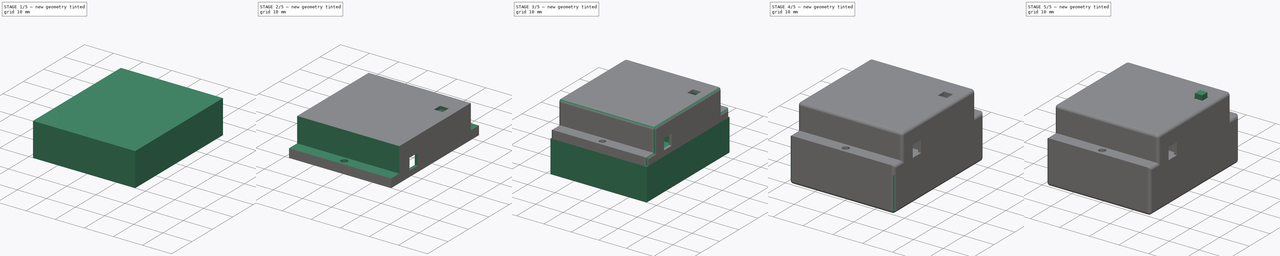
[diagram: build sequence overview — one tinted view per stage of 5, left to right]
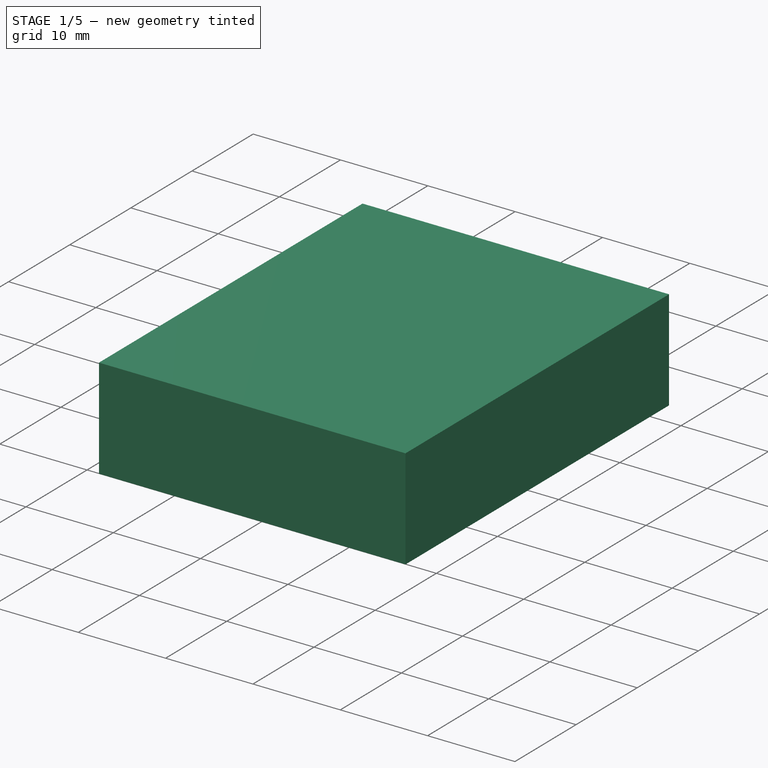
[diagram: stage 1 of 5 — iso view after this stage's code; geometry added in this stage tinted green]
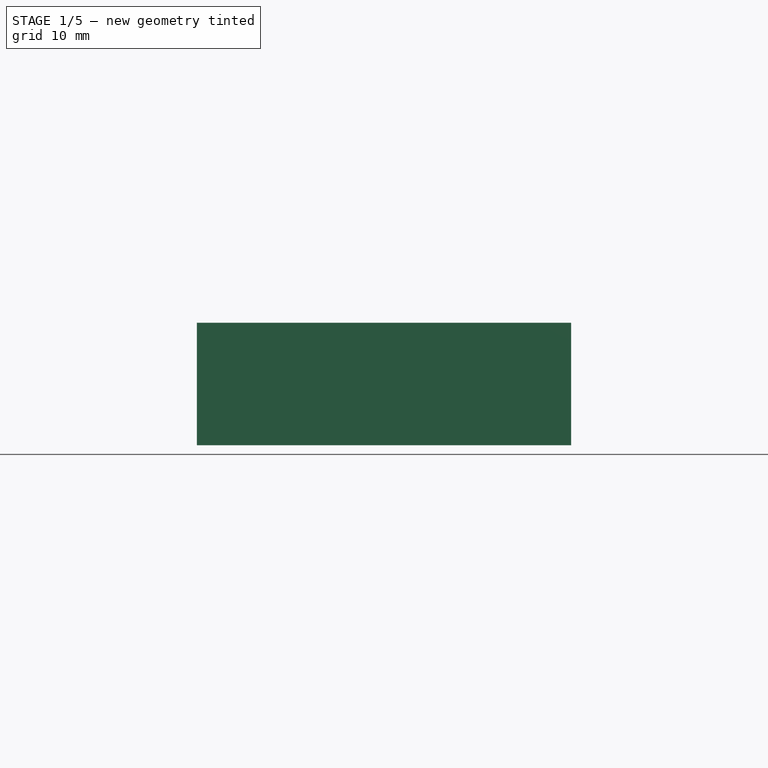
[diagram: stage 1 of 5 — front view after this stage's code; geometry added in this stage tinted green]
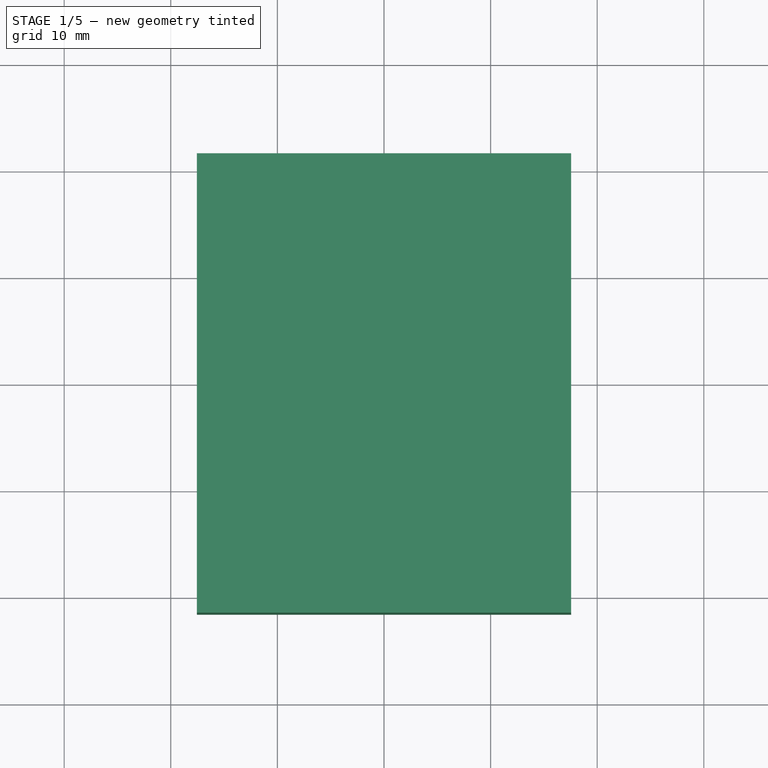
[diagram: stage 1 of 5 — top view after this stage's code; geometry added in this stage tinted green]
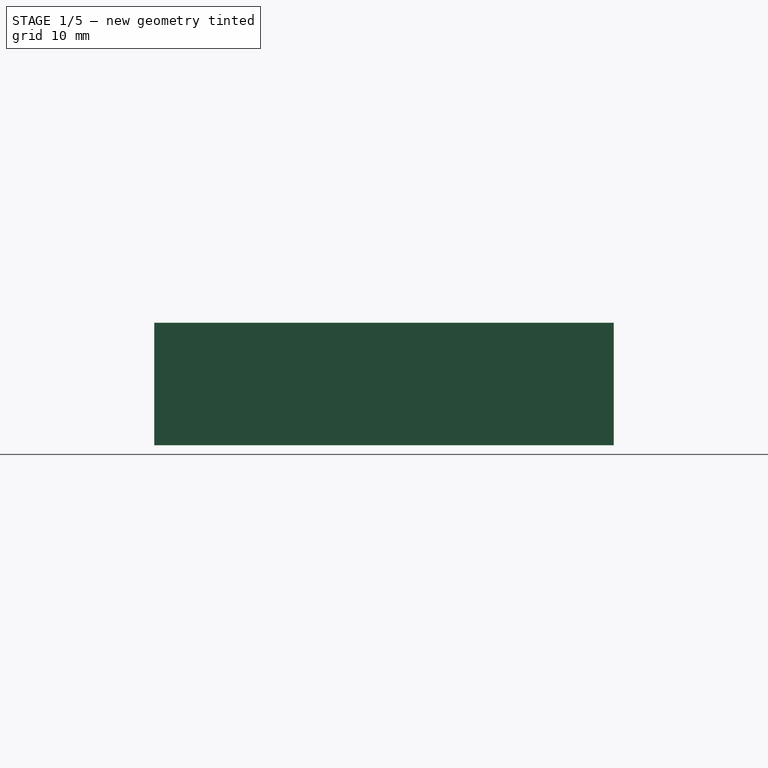
[diagram: stage 1 of 5 — right view after this stage's code; geometry added in this stage tinted green]
FCSTD DOCUMENT  (FreeCAD 1.0R39109 (Git))
Label: Led Keychain
License: All rights reserved
LicenseURL: https://en.wikipedia.org/wiki/All_rights_reserved
objects: Sketcher::SketchObject×13, PartDesign::Pad×7, PartDesign::Pocket×7, PartDesign::ShapeBinder×3, PartDesign::Body×3, PartDesign::Fillet×3, App::VarSet×1
note: 83 computed .brp shape members not serialized (recipe doc carries the construction recipe); baked Part::Feature solids carry a one-line shape summary decoded from their .brp

FEATURE [App::VarSet] VarSet
  DisplaySide = 0.12
  SideSize = 33.1
  Thickness = 1
FEATURE [Sketcher::SketchObject] Sketch
  ArcFitTolerance = 1e-06
  AttachmentSupport = -> [XY_Plane]
  FullyConstrained = true
  MakeInternals = false
  MapMode = 5
  expr: Constraints[10] = VarSet.SideSize
  expr: Constraints[22] = VarSet.Thickness
  sketch-geometry (10):
    g0: LineSegment [constr] StartX=-16.55 StartY=16.55 StartZ=0 EndX=-16.55 EndY=-16.55 EndZ=0
    g1: LineSegment [constr] StartX=-16.55 StartY=-16.55 StartZ=0 EndX=16.55 EndY=-16.55 EndZ=0
    g2: LineSegment [constr] StartX=16.55 StartY=-16.55 StartZ=0 EndX=16.55 EndY=16.55 EndZ=0
    g3: LineSegment [constr] StartX=16.55 StartY=16.55 StartZ=0 EndX=-16.55 EndY=16.55 EndZ=0
    g4: GeomPoint [constr] X=0 Y=0 Z=0
    g5: LineSegment StartX=-17.55 StartY=21.55 StartZ=0 EndX=-17.55 EndY=-21.55 EndZ=0
    g6: LineSegment StartX=-17.55 StartY=-21.55 StartZ=0 EndX=17.55 EndY=-21.55 EndZ=0
    g7: LineSegment StartX=17.55 StartY=-21.55 StartZ=0 EndX=17.55 EndY=21.55 EndZ=0
    g8: LineSegment StartX=17.55 StartY=21.55 StartZ=0 EndX=-17.55 EndY=21.55 EndZ=0
    g9: GeomPoint [constr] X=0 Y=0 Z=0
  constraints (24):
    c: Coincident(g0,g1)
    c: Coincident(g1,g2)
    c: Coincident(g2,g3)
    c: Coincident(g3,g0)
    c: Vertical(g0)
    c: Vertical(g2)
    c: Horizontal(g1)
    c: Horizontal(g3)
    c: Symmetric(g2,g0,g4)
    c: Coincident(g4,g-1)
    c: DistanceX(g3,g3) = 33.1
    c: Equal(g3,g0)
    c: Coincident(g5,g6)
    c: Coincident(g6,g7)
    c: Coincident(g7,g8)
    c: Coincident(g8,g5)
    c: Vertical(g5)
    c: Vertical(g7)
    c: Horizontal(g6)
    c: Horizontal(g8)
    c: Symmetric(g7,g5,g9)
    c: Coincident(g9,g4)
    c: Distance(g2,g7) = 1
    c: Distance(g1,g6) = 5
FEATURE [PartDesign::Pad] Pad
  Direction = (0,0,1)
  Length = 11.72
  Length2 = 10
  Profile = -> Sketch
  ReferenceAxis = -> Sketch [N_Axis]
  Refine = true
  Suppressed = false
  Type = 0
  expr: Length = VarSet.DisplaySide + 11.6 mm
FEATURE [PartDesign::ShapeBinder] ShapeBinder
  Placement = pos=(0,0,11.72) rot=(0,0,1;0rad)
  Support = -> [Pad]
  TraceSupport = false
FEATURE [Sketcher::SketchObject] Sketch001
  ArcFitTolerance = 1e-06
  AttachmentSupport = -> [ShapeBinder]
  ExternalGeometry = -> [ShapeBinder]
  FullyConstrained = true
  MakeInternals = false
  MapMode = 5
  Placement = pos=(0,0,11.72) rot=(0,0,1;0rad)
  sketch-geometry (5):
    g0: LineSegment StartX=-17.55 StartY=-21.55 StartZ=0 EndX=17.55 EndY=-21.55 EndZ=0
    g1: LineSegment StartX=17.55 StartY=-21.55 StartZ=0 EndX=17.55 EndY=21.55 EndZ=0
    g2: LineSegment StartX=17.55 StartY=21.55 StartZ=0 EndX=-17.55 EndY=21.55 EndZ=0
    g3: LineSegment StartX=-17.55 StartY=21.55 StartZ=0 EndX=-17.55 EndY=-21.55 EndZ=0
    g4: GeomPoint [constr] X=0 Y=0 Z=0
  constraints (11):
    c: Coincident(g0,g1)
    c: Coincident(g1,g2)
    c: Coincident(g2,g3)
    c: Coincident(g3,g0)
    c: Horizontal(g0)
    c: Horizontal(g2)
    c: Vertical(g1)
    c: Vertical(g3)
    c: Symmetric(g2,g0,g4)
    c: Coincident(g4,g-1)
    c: Coincident(g1,g-4)
FEATURE [PartDesign::Pad] Pad001
  Direction = (0,0,1)
  Length = 11.5
  Length2 = 10
  Placement = pos=(0,0,11.72) rot=(0,0,1;0rad)
  Profile = -> Sketch001
  ReferenceAxis = -> Sketch001 [N_Axis]
  Refine = true
  Suppressed = false
  Type = 0
  expr: Length = 10.5 mm + VarSet.Thickness
FEATURE [Sketcher::SketchObject] Sketch003
  ArcFitTolerance = 1e-06
  AttachmentSupport = -> [Pad001]
  FullyConstrained = true
  MakeInternals = false
  MapMode = 5
  Placement = pos=(0,0,11.72) rot=(1,0,0;3.14159rad)
  expr: Constraints[10] = VarSet.SideSize
  sketch-geometry (5):
    g0: LineSegment StartX=-16.55 StartY=-16.55 StartZ=0 EndX=16.55 EndY=-16.55 EndZ=0
    g1: LineSegment StartX=16.55 StartY=-16.55 StartZ=0 EndX=16.55 EndY=16.55 EndZ=0
    g2: LineSegment StartX=16.55 StartY=16.55 StartZ=0 EndX=-16.55 EndY=16.55 EndZ=0
    g3: LineSegment StartX=-16.55 StartY=16.55 StartZ=0 EndX=-16.55 EndY=-16.55 EndZ=0
    g4: GeomPoint [constr] X=0 Y=0 Z=0
  constraints (12):
    c: Coincident(g0,g1)
    c: Coincident(g1,g2)
    c: Coincident(g2,g3)
    c: Coincident(g3,g0)
    c: Horizontal(g0)
    c: Horizontal(g2)
    c: Vertical(g1)
    c: Vertical(g3)
    c: Symmetric(g2,g0,g4)
    c: Coincident(g4,g-1)
    c: DistanceX(g2,g2) = 33.1
    c: Equal(g1,g2)
FEATURE [PartDesign::Pocket] Pocket001
  BaseFeature = -> Pad001
  Direction = (0,0,1)
  Length = 0
  Length2 = 5
  Offset = -1
  Placement = pos=(0,0,11.72) rot=(0,0,1;0rad)
  Profile = -> Sketch003
  ReferenceAxis = -> Sketch003 [N_Axis]
  Refine = true
  Suppressed = false
  Type = 3
  UpToFace = -> Pad001 [Face6]
  expr: Offset = -VarSet.Thickness
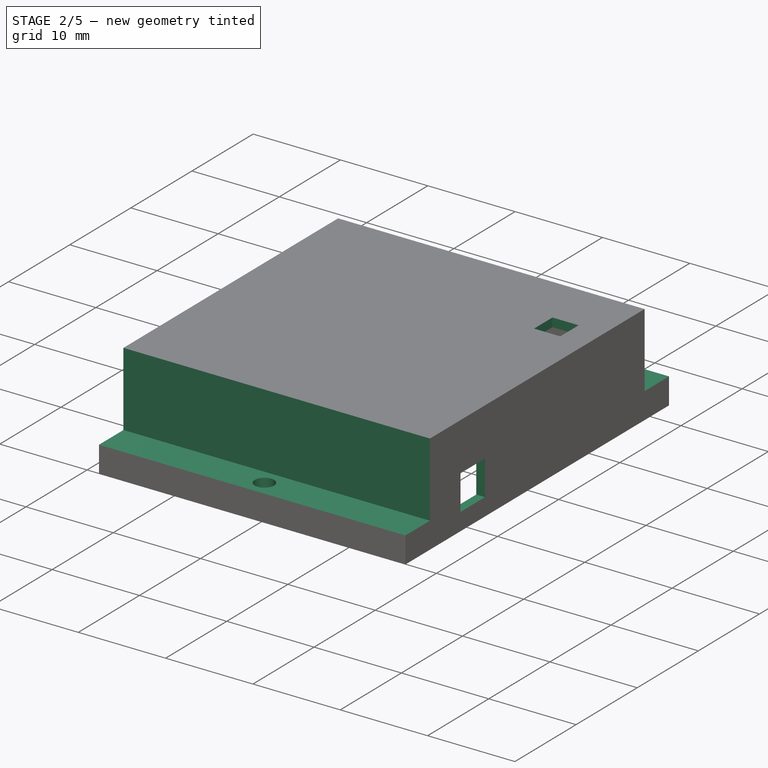
[diagram: stage 2 of 5 — iso view after this stage's code; geometry added in this stage tinted green]
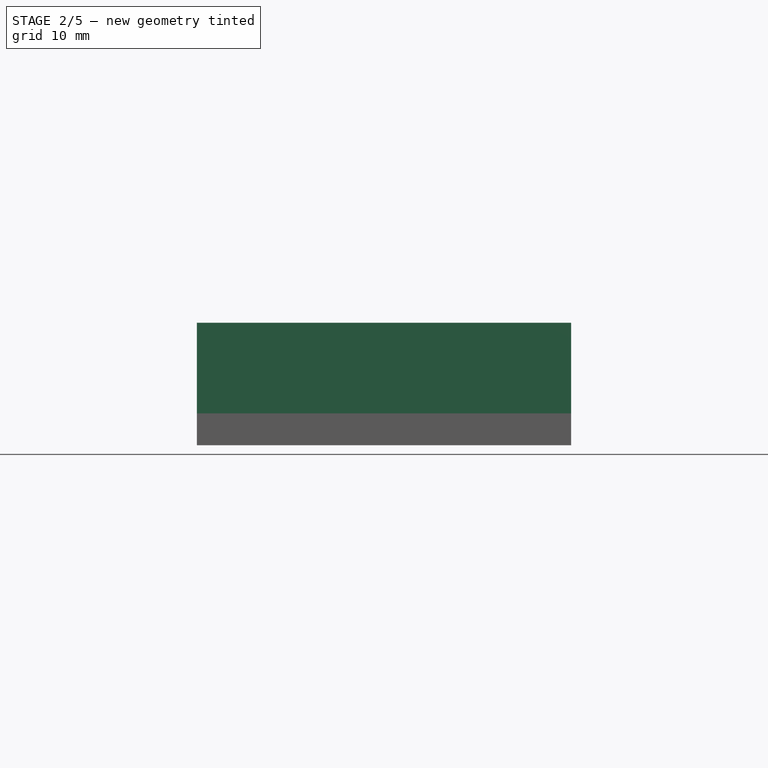
[diagram: stage 2 of 5 — front view after this stage's code; geometry added in this stage tinted green]
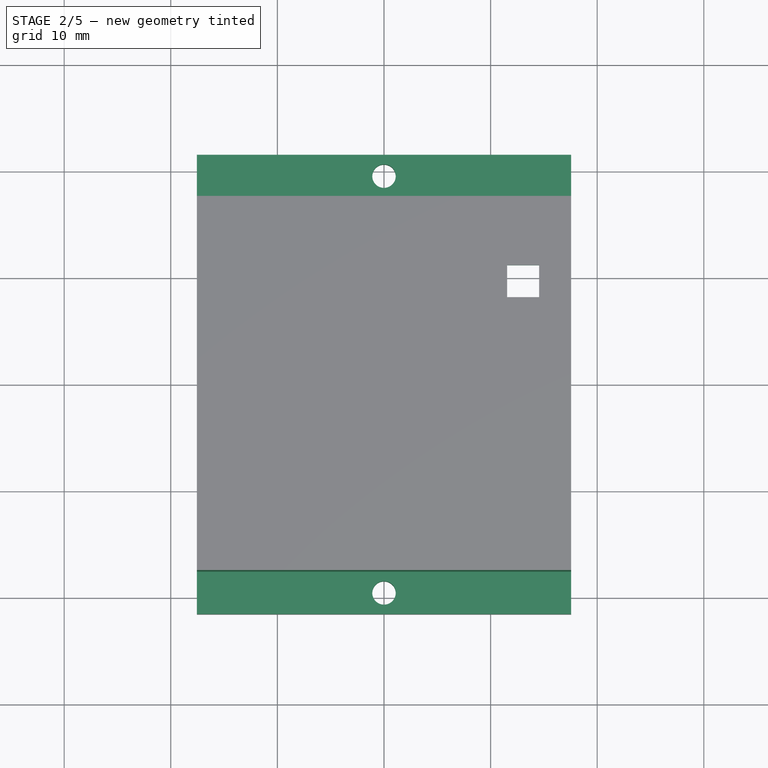
[diagram: stage 2 of 5 — top view after this stage's code; geometry added in this stage tinted green]
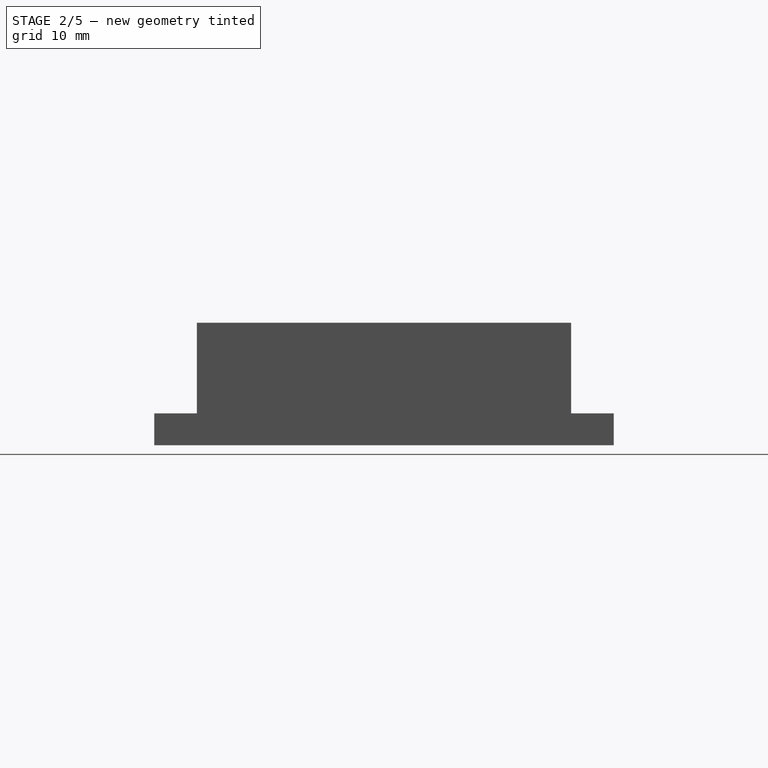
[diagram: stage 2 of 5 — right view after this stage's code; geometry added in this stage tinted green]
FEATURE [Sketcher::SketchObject] Sketch004
  ArcFitTolerance = 1e-06
  AttachmentSupport = -> [Pocket001]
  ExternalGeometry = -> [Pocket001]
  FullyConstrained = true
  MakeInternals = false
  MapMode = 5
  Placement = pos=(0,0,23.22) rot=(0,0,1;0rad)
  sketch-geometry (8):
    g0: LineSegment StartX=-17.55 StartY=21.55 StartZ=0 EndX=-17.55 EndY=17.55 EndZ=0
    g1: LineSegment StartX=-17.55 StartY=17.55 StartZ=0 EndX=17.55 EndY=17.55 EndZ=0
    g2: LineSegment StartX=17.55 StartY=17.55 StartZ=0 EndX=17.55 EndY=21.55 EndZ=0
    g3: LineSegment StartX=17.55 StartY=21.55 StartZ=0 EndX=-17.55 EndY=21.55 EndZ=0
    g4: LineSegment StartX=17.55 StartY=-21.55 StartZ=0 EndX=17.55 EndY=-17.55 EndZ=0
    g5: LineSegment StartX=17.55 StartY=-17.55 StartZ=0 EndX=-17.55 EndY=-17.55 EndZ=0
    g6: LineSegment StartX=-17.55 StartY=-17.55 StartZ=0 EndX=-17.55 EndY=-21.55 EndZ=0
    g7: LineSegment StartX=-17.55 StartY=-21.55 StartZ=0 EndX=17.55 EndY=-21.55 EndZ=0
  constraints (22):
    c: Coincident(g0,g1)
    c: Coincident(g1,g2)
    c: Coincident(g2,g3)
    c: Coincident(g3,g0)
    c: Vertical(g0)
    c: Vertical(g2)
    c: Horizontal(g1)
    c: Horizontal(g3)
    c: Coincident(g0,g-6)
    c: PointOnObject(g1,g-5)
    c: Coincident(g4,g5)
    c: Coincident(g5,g6)
    c: Coincident(g6,g7)
    c: Coincident(g7,g4)
    c: Vertical(g4)
    c: Vertical(g6)
    c: Horizontal(g5)
    c: Horizontal(g7)
    c: Coincident(g4,g-5)
    c: PointOnObject(g5,g-6)
    c: Equal(g2,g4)
    c: Distance(g2,g2) = 4
FEATURE [PartDesign::Pocket] Pocket002
  BaseFeature = -> Pocket001
  Direction = (0,0,-1)
  Length = 0
  Length2 = 5
  Offset = 3
  Placement = pos=(0,0,11.72) rot=(0,0,1;0rad)
  Profile = -> Sketch004
  ReferenceAxis = -> Sketch004 [N_Axis]
  Refine = true
  Suppressed = false
  Type = 3
  UpToFace = -> Pocket001 [Face4]
FEATURE [Sketcher::SketchObject] Sketch005
  ArcFitTolerance = 1e-06
  AttachmentSupport = -> [Pocket002]
  ExternalGeometry = -> [Pocket002]
  FullyConstrained = true
  MakeInternals = false
  MapMode = 5
  Placement = pos=(0,0,14.72) rot=(0,0,1;0rad)
  sketch-geometry (2):
    g0: Circle CenterX=-6e-16 CenterY=19.55 CenterZ=0 NormalX=0 NormalY=0 NormalZ=1 AngleXU=0 Radius=1.1
    g1: Circle CenterX=3.4e-15 CenterY=-19.55 CenterZ=0 NormalX=0 NormalY=0 NormalZ=1 AngleXU=0 Radius=1.1
  constraints (4):
    c: Symmetric(g-3,g-4,g0)
    c: Symmetric(g-6,g-5,g1)
    c: Equal(g1,g0)
    c: Diameter(g0) = 2.2
FEATURE [PartDesign::Pocket] Pocket003
  BaseFeature = -> Pocket002
  Direction = (0,0,-1)
  Length = 5
  Length2 = 5
  Placement = pos=(0,0,11.72) rot=(0,0,1;0rad)
  Profile = -> Sketch005
  ReferenceAxis = -> Sketch005 [N_Axis]
  Refine = true
  Suppressed = false
  Type = 1
FEATURE [Sketcher::SketchObject] Sketch007
  ArcFitTolerance = 1e-06
  AttachmentSupport = -> [Pocket003]
  FullyConstrained = true
  MakeInternals = false
  MapMode = 5
  Placement = pos=(17.55,0,11.72) rot=(0.57735,0.57735,0.57735;2.0944rad)
  expr: Constraints[2] = VarSet.SideSize / 2
  sketch-geometry (5):
    g0: LineSegment [constr] StartX=0 StartY=0 StartZ=0 EndX=-16.55 EndY=0 EndZ=0
    g1: LineSegment StartX=-12.55 StartY=6 StartZ=0 EndX=-12.55 EndY=2 EndZ=0
    g2: LineSegment StartX=-12.55 StartY=2 StartZ=0 EndX=-8.55 EndY=2 EndZ=0
    g3: LineSegment StartX=-8.55 StartY=2 StartZ=0 EndX=-8.55 EndY=6 EndZ=0
    g4: LineSegment StartX=-8.55 StartY=6 StartZ=0 EndX=-12.55 EndY=6 EndZ=0
  constraints (15):
    c: Coincident(g0,g-1)
    c: PointOnObject(g0,g-1)
    c: DistanceX(g0,g0) = 16.55
    c: Coincident(g1,g2)
    c: Coincident(g2,g3)
    c: Coincident(g3,g4)
    c: Coincident(g4,g1)
    c: Vertical(g1)
    c: Vertical(g3)
    c: Horizontal(g2)
    c: Horizontal(g4)
    c: Distance(g0,g1) = 4
    c: Distance(g0,g2) = 2
    c: DistanceX(g4,g4) = 4
    c: DistanceY(g3,g3) = 4
FEATURE [PartDesign::Pocket] Pocket005
  BaseFeature = -> Pocket003
  Direction = (-1,0,0)
  Length = 5
  Length2 = 5
  Placement = pos=(0,0,11.72) rot=(0,0,1;0rad)
  Profile = -> Sketch007
  ReferenceAxis = -> Sketch007 [N_Axis]
  Refine = true
  Suppressed = false
  Type = 0
FEATURE [Sketcher::SketchObject] Sketch009
  ArcFitTolerance = 1e-06
  AttachmentSupport = -> [Pocket005]
  FullyConstrained = true
  MakeInternals = false
  MapMode = 5
  Placement = pos=(0,0,23.22) rot=(0,0,1;0rad)
  expr: Constraints[10] = VarSet.SideSize
  sketch-geometry (10):
    g0: LineSegment [constr] StartX=-16.55 StartY=-16.55 StartZ=0 EndX=16.55 EndY=-16.55 EndZ=0
    g1: LineSegment [constr] StartX=16.55 StartY=-16.55 StartZ=0 EndX=16.55 EndY=16.55 EndZ=0
    g2: LineSegment [constr] StartX=16.55 StartY=16.55 StartZ=0 EndX=-16.55 EndY=16.55 EndZ=0
    g3: LineSegment [constr] StartX=-16.55 StartY=16.55 StartZ=0 EndX=-16.55 EndY=-16.55 EndZ=0
    g4: GeomPoint [constr] X=0 Y=0 Z=0
    g5: LineSegment StartX=11.55 StartY=11.05 StartZ=0 EndX=11.55 EndY=8.05 EndZ=0
    g6: LineSegment StartX=11.55 StartY=8.05 StartZ=0 EndX=14.55 EndY=8.05 EndZ=0
    g7: LineSegment StartX=14.55 StartY=8.05 StartZ=0 EndX=14.55 EndY=11.05 EndZ=0
    g8: LineSegment StartX=14.55 StartY=11.05 StartZ=0 EndX=11.55 EndY=11.05 EndZ=0
    g9: GeomPoint [constr] X=13.05 Y=9.55 Z=0
  constraints (25):
    c: Coincident(g0,g1)
    c: Coincident(g1,g2)
    c: Coincident(g2,g3)
    c: Coincident(g3,g0)
    c: Horizontal(g0)
    c: Horizontal(g2)
    c: Vertical(g1)
    c: Vertical(g3)
    c: Symmetric(g2,g0,g4)
    c: Coincident(g4,g-1)
    c: Distance(g2,g2) = 33.1
    c: Equal(g2,g1)
    c: Coincident(g5,g6)
    c: Coincident(g6,g7)
    c: Coincident(g7,g8)
    c: Coincident(g8,g5)
    c: Vertical(g5)
    c: Vertical(g7)
    c: Horizontal(g6)
    c: Horizontal(g8)
    c: Symmetric(g7,g5,g9)
    c: Distance(g9,g2) = 7
    c: Distance(g9,g1) = 3.5
    c: Equal(g6,g7)
    c: DistanceX(g8,g8) = 3
FEATURE [PartDesign::Pocket] Pocket006
  BaseFeature = -> Pocket005
  Direction = (0,0,-1)
  Length = 5
  Length2 = 5
  Placement = pos=(0,0,11.72) rot=(0,0,1;0rad)
  Profile = -> Sketch009
  ReferenceAxis = -> Sketch009 [N_Axis]
  Refine = true
  Suppressed = false
  Type = 0
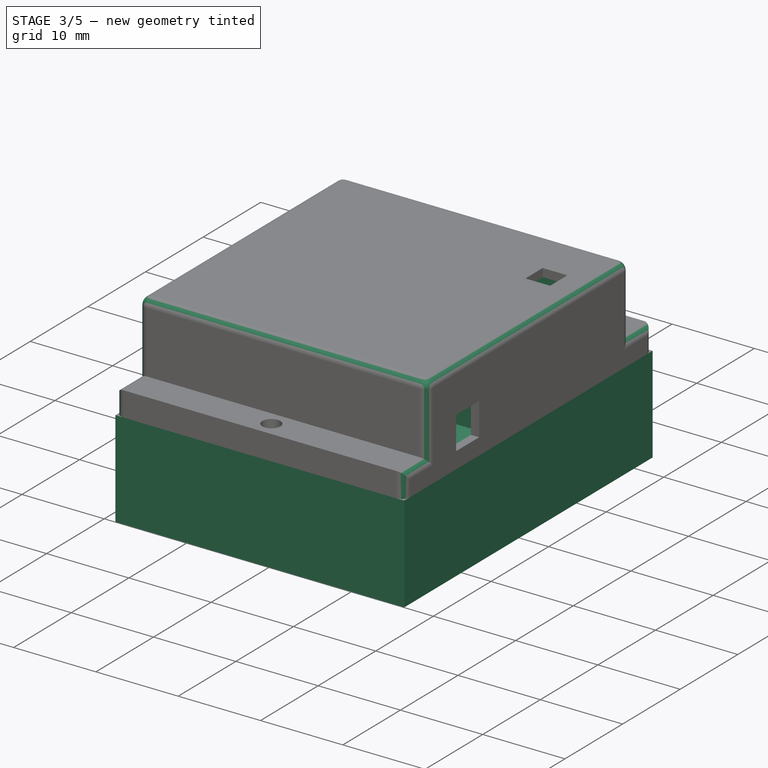
[diagram: stage 3 of 5 — iso view after this stage's code; geometry added in this stage tinted green]
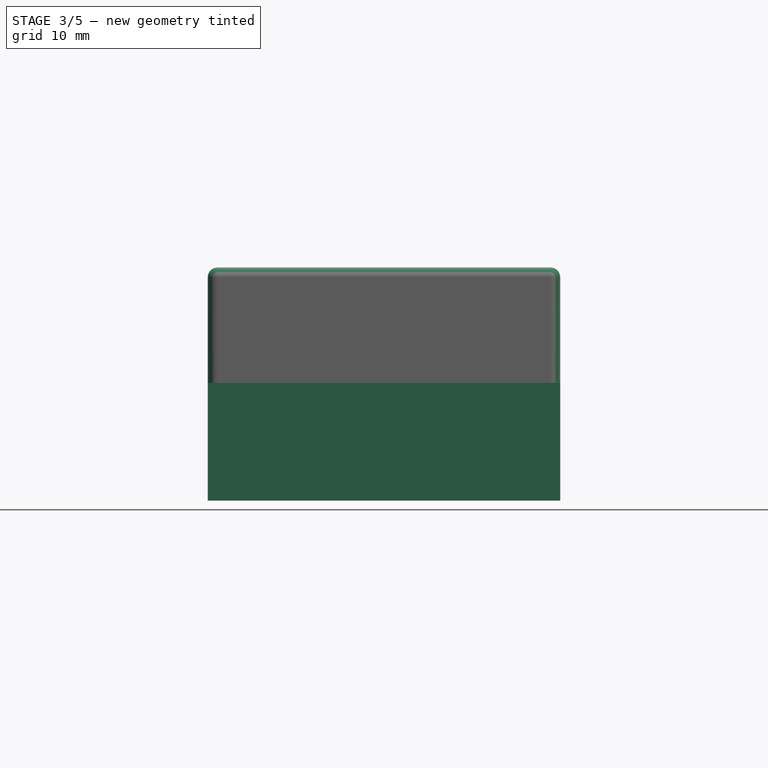
[diagram: stage 3 of 5 — front view after this stage's code; geometry added in this stage tinted green]
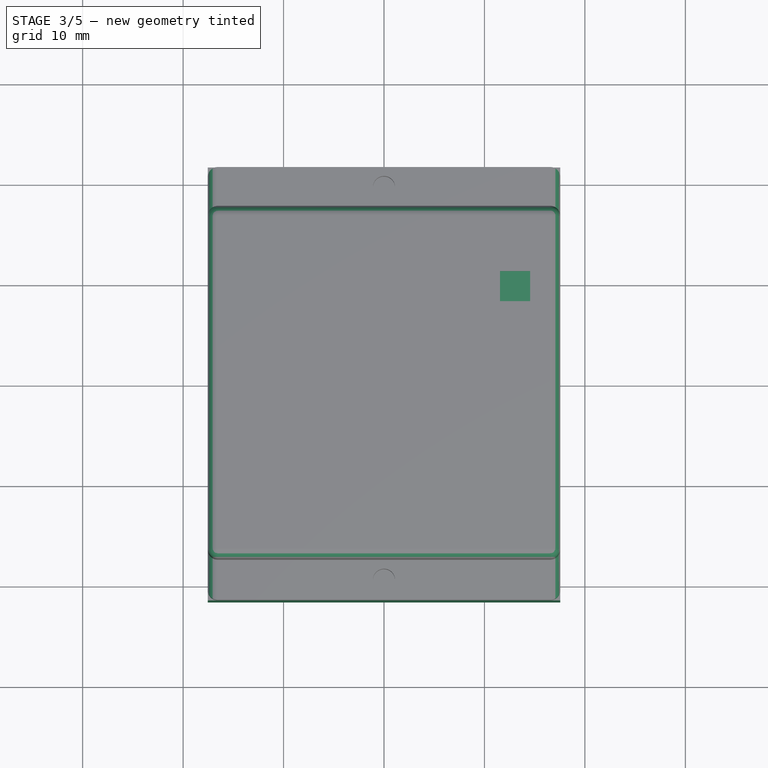
[diagram: stage 3 of 5 — top view after this stage's code; geometry added in this stage tinted green]
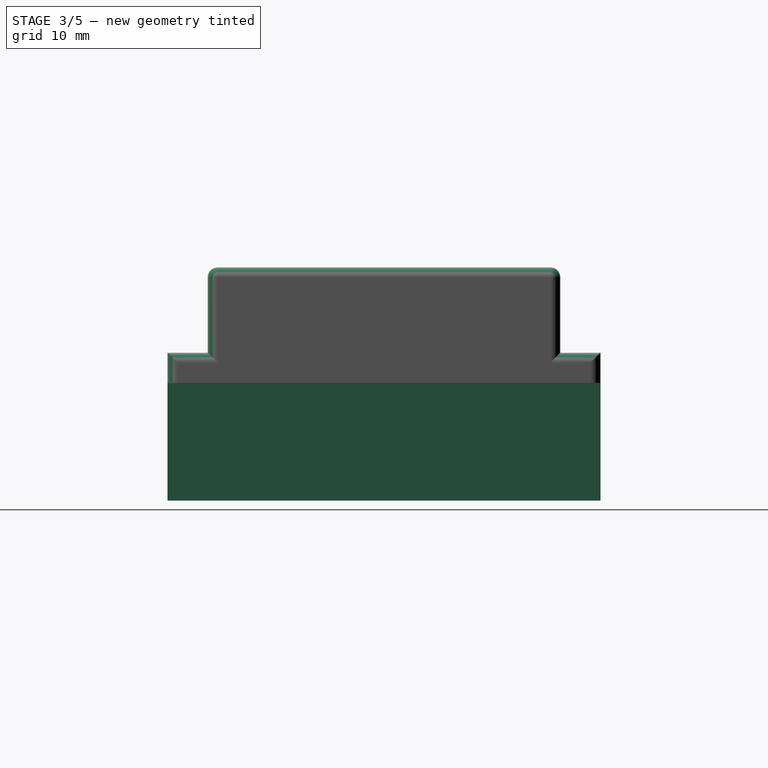
[diagram: stage 3 of 5 — right view after this stage's code; geometry added in this stage tinted green]
FEATURE [Sketcher::SketchObject] Sketch002
  ArcFitTolerance = 1e-06
  AttachmentSupport = -> [Pad]
  FullyConstrained = true
  MakeInternals = false
  MapMode = 5
  Placement = pos=(0,0,11.72) rot=(0,0,1;0rad)
  expr: Constraints[10] = VarSet.SideSize
  sketch-geometry (5):
    g0: LineSegment StartX=-16.55 StartY=16.55 StartZ=0 EndX=-16.55 EndY=-16.55 EndZ=0
    g1: LineSegment StartX=-16.55 StartY=-16.55 StartZ=0 EndX=16.55 EndY=-16.55 EndZ=0
    g2: LineSegment StartX=16.55 StartY=-16.55 StartZ=0 EndX=16.55 EndY=16.55 EndZ=0
    g3: LineSegment StartX=16.55 StartY=16.55 StartZ=0 EndX=-16.55 EndY=16.55 EndZ=0
    g4: GeomPoint [constr] X=0 Y=0 Z=0
  constraints (12):
    c: Coincident(g0,g1)
    c: Coincident(g1,g2)
    c: Coincident(g2,g3)
    c: Coincident(g3,g0)
    c: Vertical(g0)
    c: Vertical(g2)
    c: Horizontal(g1)
    c: Horizontal(g3)
    c: Symmetric(g2,g0,g4)
    c: Coincident(g4,g-1)
    c: DistanceX(g3,g3) = 33.1
    c: Equal(g3,g2)
FEATURE [PartDesign::Pocket] Pocket
  BaseFeature = -> Pad
  Direction = (0,0,-1)
  Length = 0
  Length2 = 5
  Offset = -0.12
  Profile = -> Sketch002
  ReferenceAxis = -> Sketch002 [N_Axis]
  Refine = true
  Suppressed = false
  Type = 3
  UpToFace = -> Pad [Face5]
  expr: Offset = -VarSet.DisplaySide
FEATURE [PartDesign::Fillet] Fillet001
  Base = -> Pocket006 [Edge18,Edge50,Edge19,Edge16,Edge14,Edge31,Edge29,Edge30,Edge28,Edge49,Edge27,Edge25,Edge4,Edge2,Edge15,Edge17]
  BaseFeature = -> Pocket006
  Placement = pos=(0,0,11.72) rot=(0,0,1;0rad)
  Radius = 1
  Refine = true
  SupportTransform = false
  Suppressed = false
  UseAllEdges = false
FEATURE [PartDesign::Body] Body  label="Bottom"
  AllowCompound = false
  Group = -> [Sketch,Pad,Sketch002,Pocket,ShapeBinder001,Sketch006,Pocket004,Sketch008,Pad002,Fillet,Fillet002]
  Origin = -> Origin
  Tip = -> Fillet002
FEATURE [Sketcher::SketchObject] Sketch012
  ArcFitTolerance = 1e-06
  AttachmentSupport = -> [Fillet001]
  ExternalGeometry = -> [Fillet001]
  FullyConstrained = true
  MakeInternals = false
  MapMode = 5
  Placement = pos=(0,0,22.22) rot=(1,0,0;3.14159rad)
  sketch-geometry (8):
    g0: LineSegment StartX=-16.55 StartY=16.55 StartZ=0 EndX=-16.55 EndY=15.55 EndZ=0
    g1: LineSegment StartX=-16.55 StartY=15.55 StartZ=0 EndX=16.55 EndY=15.55 EndZ=0
    g2: LineSegment StartX=16.55 StartY=15.55 StartZ=0 EndX=16.55 EndY=16.55 EndZ=0
    g3: LineSegment StartX=16.55 StartY=16.55 StartZ=0 EndX=-16.55 EndY=16.55 EndZ=0
    g4: LineSegment StartX=16.55 StartY=-16.55 StartZ=0 EndX=16.55 EndY=-15.55 EndZ=0
    g5: LineSegment StartX=16.55 StartY=-15.55 StartZ=0 EndX=-16.55 EndY=-15.55 EndZ=0
    g6: LineSegment StartX=-16.55 StartY=-15.55 StartZ=0 EndX=-16.55 EndY=-16.55 EndZ=0
    g7: LineSegment StartX=-16.55 StartY=-16.55 StartZ=0 EndX=16.55 EndY=-16.55 EndZ=0
  constraints (22):
    c: Coincident(g0,g1)
    c: Coincident(g1,g2)
    c: Coincident(g2,g3)
    c: Coincident(g3,g0)
    c: Vertical(g0)
    c: Vertical(g2)
    c: Horizontal(g1)
    c: Horizontal(g3)
    c: Coincident(g0,g-6)
    c: PointOnObject(g1,g-5)
    c: Coincident(g4,g5)
    c: Coincident(g5,g6)
    c: Coincident(g6,g7)
    c: Coincident(g7,g4)
    c: Vertical(g4)
    c: Vertical(g6)
    c: Horizontal(g5)
    c: Horizontal(g7)
    c: Coincident(g4,g-5)
    c: PointOnObject(g5,g-6)
    c: Equal(g2,g4)
    c: Distance(g2,g2) = 1
FEATURE [PartDesign::Pad] Pad006
  BaseFeature = -> Fillet001
  Direction = (0,0,-1)
  Length = 10
  Length2 = 10
  Offset = 2.2
  Placement = pos=(0,0,11.72) rot=(0,0,1;0rad)
  Profile = -> Sketch012
  ReferenceAxis = -> Sketch012 [N_Axis]
  Refine = true
  Suppressed = false
  Type = 3
  UpToFace = -> Fillet001 [Face2]
FEATURE [PartDesign::Body] Body001  label="Top"
  AllowCompound = false
  Group = -> [ShapeBinder,Sketch001,Pad001,Sketch003,Pocket001,Sketch004,Pocket002,Sketch005,Pocket003,Sketch007,Pocket005,Sketch009,Pocket006,Fillet001,Sketch012,Pad006]
  Origin = -> Origin001
  Tip = -> Pad006
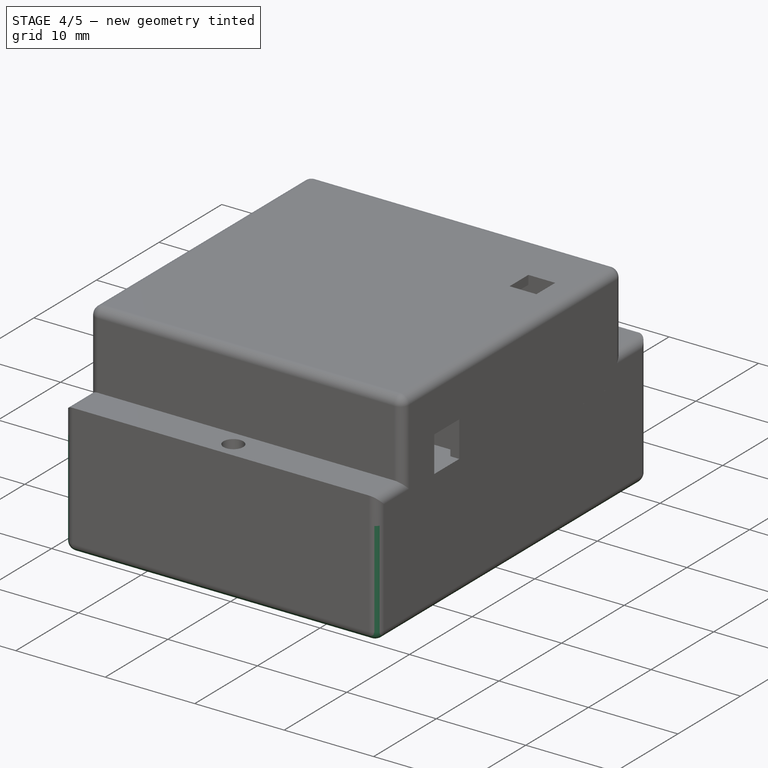
[diagram: stage 4 of 5 — iso view after this stage's code; geometry added in this stage tinted green]
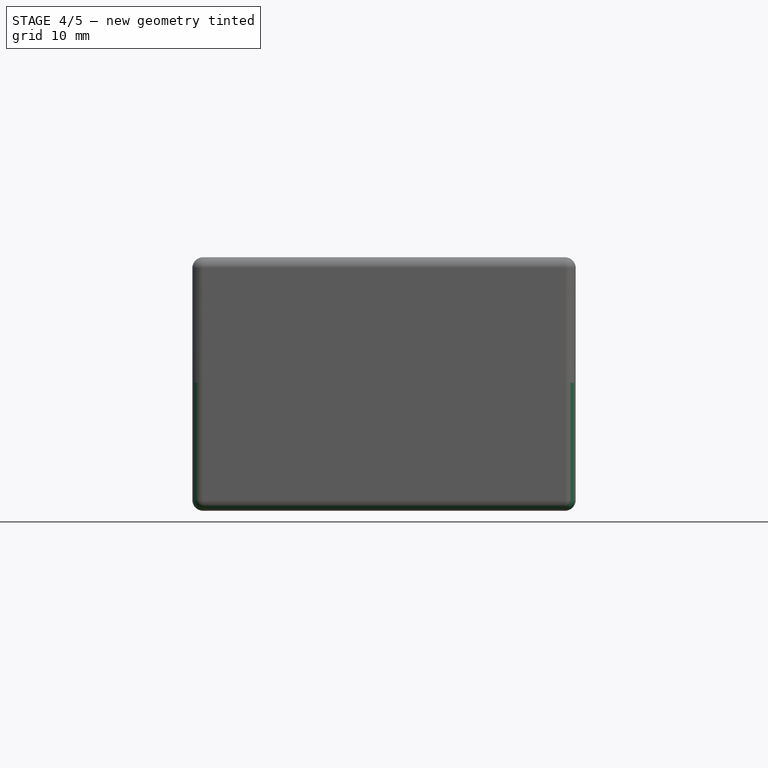
[diagram: stage 4 of 5 — front view after this stage's code; geometry added in this stage tinted green]
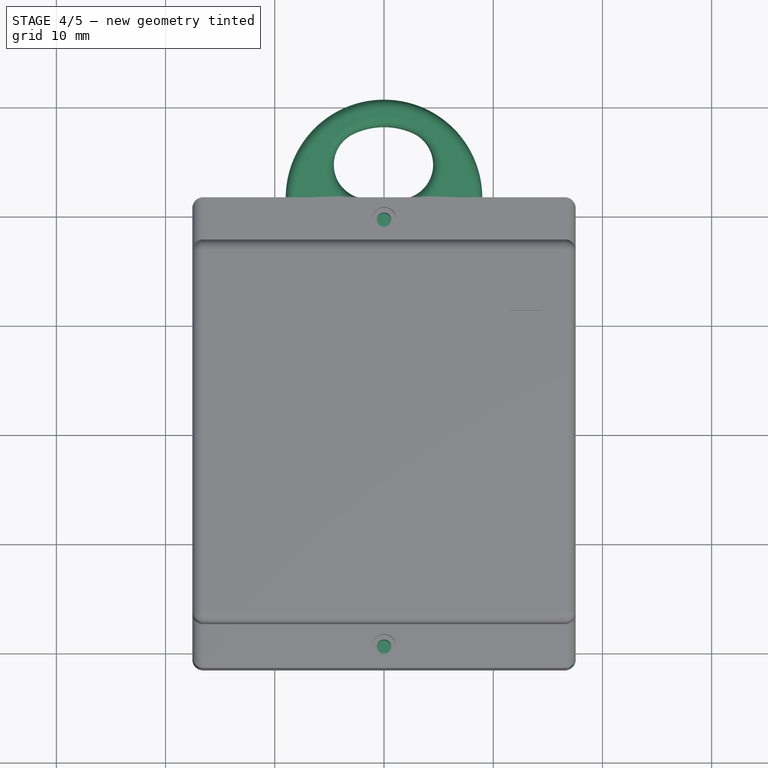
[diagram: stage 4 of 5 — top view after this stage's code; geometry added in this stage tinted green]
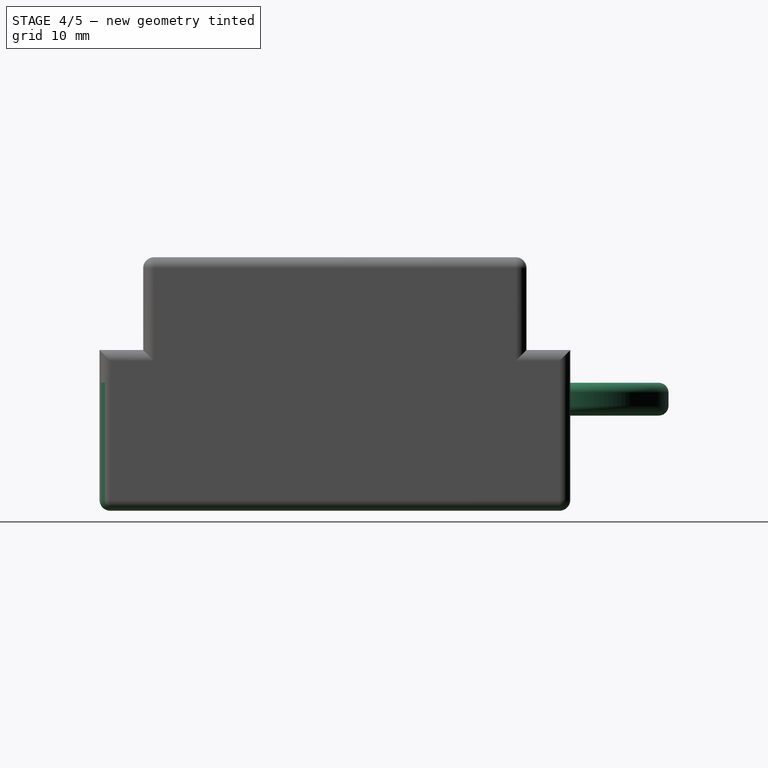
[diagram: stage 4 of 5 — right view after this stage's code; geometry added in this stage tinted green]
FEATURE [PartDesign::ShapeBinder] ShapeBinder001
  Support = -> [Pocket003]
  TraceSupport = false
FEATURE [Sketcher::SketchObject] Sketch006
  ArcFitTolerance = 1e-06
  AttachmentSupport = -> [Pocket]
  ExternalGeometry = -> [ShapeBinder001]
  FullyConstrained = true
  MakeInternals = false
  MapMode = 5
  Placement = pos=(0,0,11.72) rot=(0,0,1;0rad)
  sketch-geometry (2):
    g0: Circle CenterX=0 CenterY=19.55 CenterZ=0 NormalX=0 NormalY=0 NormalZ=1 AngleXU=0 Radius=0.65
    g1: Circle CenterX=0 CenterY=-19.55 CenterZ=0 NormalX=0 NormalY=0 NormalZ=1 AngleXU=0 Radius=0.65
  constraints (4):
    c: Coincident(g0,g-3)
    c: Coincident(g1,g-4)
    c: Equal(g0,g1)
    c: Diameter(g0) = 1.3
FEATURE [PartDesign::Pocket] Pocket004
  BaseFeature = -> Pocket
  Direction = (0,0,-1)
  Length = 5
  Length2 = 5
  Profile = -> Sketch006
  ReferenceAxis = -> Sketch006 [N_Axis]
  Refine = true
  Suppressed = false
  Type = 0
FEATURE [Sketcher::SketchObject] Sketch008
  ArcFitTolerance = 1e-06
  AttachmentSupport = -> [Pocket004]
  ExternalGeometry = -> [Pocket004]
  FullyConstrained = false
  MakeInternals = false
  MapMode = 5
  Placement = pos=(0,0,11.72) rot=(0,0,1;0rad)
  sketch-geometry (8):
    g0: Circle [constr] CenterX=0 CenterY=21.55 CenterZ=0 NormalX=0 NormalY=0 NormalZ=1 AngleXU=0 Radius=9
    g1: Circle [constr] CenterX=0 CenterY=21.55 CenterZ=0 NormalX=0 NormalY=0 NormalZ=1 AngleXU=0 Radius=6.5
    g2: ArcOfCircle CenterX=4e-16 CenterY=21.55 CenterZ=0 NormalX=0 NormalY=0 NormalZ=1 AngleXU=0 Radius=9 StartAngle=2e-16 EndAngle=3.14159
    g3: ArcOfCircle CenterX=1.4e-15 CenterY=21.55 CenterZ=0 NormalX=0 NormalY=0 NormalZ=1 AngleXU=0 Radius=6.5 StartAngle=1.16235 EndAngle=2.02201
    g4: ArcOfCircle CenterX=-1.47149 CenterY=24.5868 CenterZ=0 NormalX=0 NormalY=0 NormalZ=1 AngleXU=0 Radius=3.12549 StartAngle=2.02201 EndAngle=4.47358
    g5: ArcOfCircle CenterX=1.31981 CenterY=24.5996 CenterZ=0 NormalX=0 NormalY=0 NormalZ=1 AngleXU=0 Radius=3.17708 StartAngle=4.99665 EndAngle=7.44554
    g6: LineSegment StartX=9 StartY=21.55 StartZ=0 EndX=2.21081 EndY=21.55 EndZ=0
    g7: LineSegment StartX=-2.21081 StartY=21.55 StartZ=0 EndX=-9 EndY=21.55 EndZ=0
  constraints (20):
    c: PointOnObject(g0,g-2)
    c: Coincident(g1,g0)
    c: Horizontal(g-3,g0)
    c: PointOnObject(g2,g-3)
    c: PointOnObject(g2,g-3)
    c: Tangent(g2,g0) = -1.5708
    c: PointOnObject(g2,g0)
    c: Tangent(g3,g4) = -1.5708
    c: Tangent(g3,g5) = -1.5708
    c: Symmetric(g5,g4,g2)
    c: PointOnObject(g3,g1)
    c: PointOnObject(g3,g1)
    c: Coincident(g6,g2)
    c: Coincident(g7,g2)
    c: Distance(g1,g0) = 2.5
    c: Diameter(g0) = 18
    c: Equal(g3,g1)
    c: Coincident(g5,g6)
    c: Coincident(g7,g4)
    c: Horizontal(g4,g5)
FEATURE [PartDesign::Pad] Pad002
  BaseFeature = -> Pocket004
  Direction = (0,0,1)
  Length = 3
  Length2 = 10
  Profile = -> Sketch008
  ReferenceAxis = -> Sketch008 [N_Axis]
  Refine = true
  Reversed = true
  Suppressed = false
  Type = 0
FEATURE [PartDesign::Body] Body002  label="Button"
  AllowCompound = false
  Group = -> [ShapeBinder002,Sketch010,Pad003,Pad004,Sketch011,Pad005]
  Origin = -> Origin002
  Tip = -> Pad005
FEATURE [PartDesign::Fillet] Fillet
  Base = -> Pad002 [Edge2,Edge3,Edge17,Edge16,Edge19,Edge1,Edge5,Edge15]
  BaseFeature = -> Pad002
  Radius = 1
  Refine = true
  SupportTransform = false
  Suppressed = false
  UseAllEdges = false
FEATURE [PartDesign::Fillet] Fillet002
  Base = -> Fillet [Edge9,Edge41,Edge56,Edge58,Edge59,Edge19,Edge20,Edge21]
  BaseFeature = -> Fillet
  Radius = 0.9
  Refine = true
  SupportTransform = false
  Suppressed = false
  UseAllEdges = false
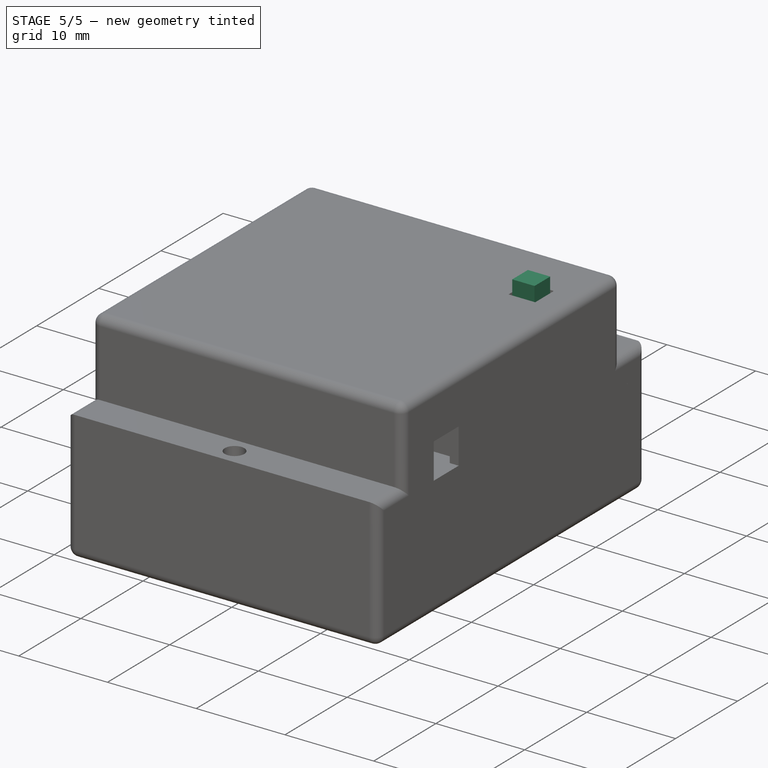
[diagram: stage 5 of 5 — iso view after this stage's code; geometry added in this stage tinted green]
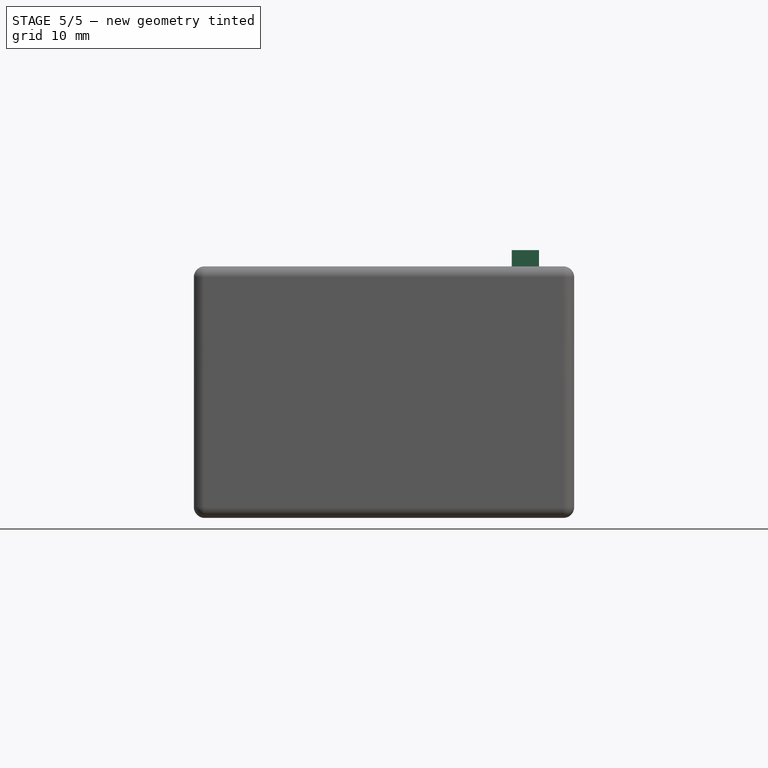
[diagram: stage 5 of 5 — front view after this stage's code; geometry added in this stage tinted green]
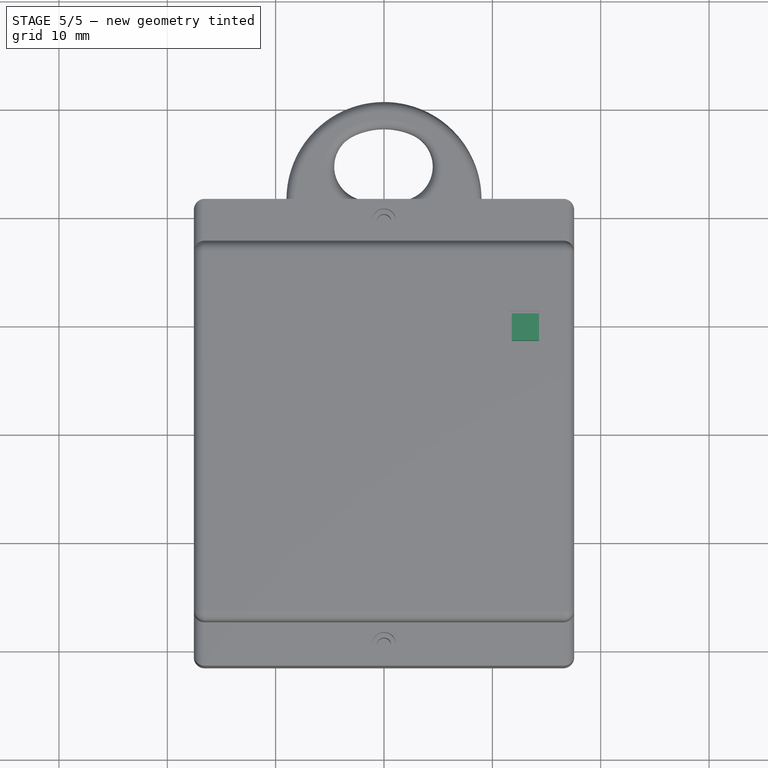
[diagram: stage 5 of 5 — top view after this stage's code; geometry added in this stage tinted green]
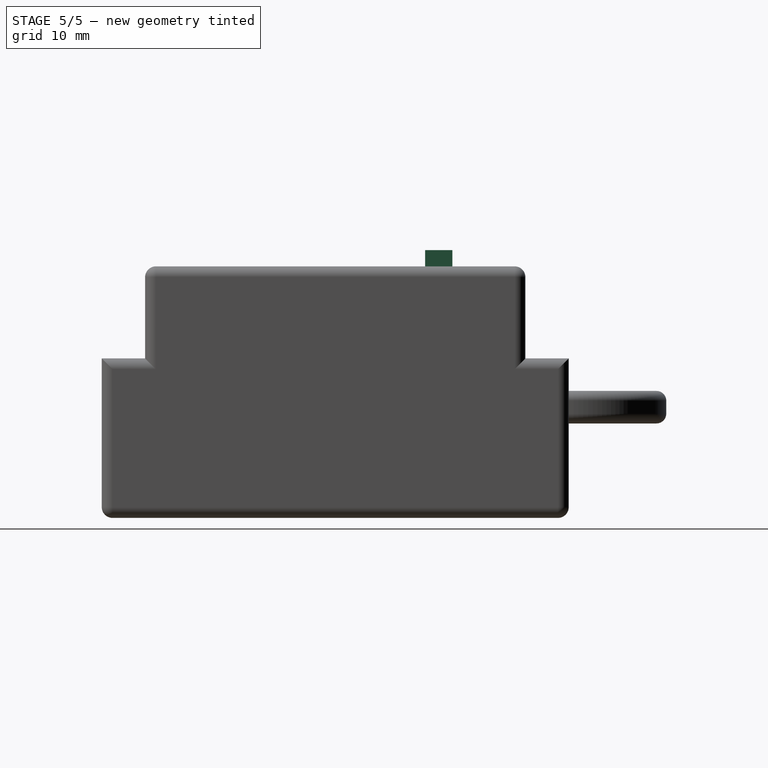
[diagram: stage 5 of 5 — right view after this stage's code; geometry added in this stage tinted green]
FEATURE [PartDesign::ShapeBinder] ShapeBinder002
  Support = -> [Pocket006]
  TraceSupport = false
FEATURE [Sketcher::SketchObject] Sketch010
  ArcFitTolerance = 1e-06
  AttachmentSupport = -> [ShapeBinder002]
  ExternalGeometry = -> [ShapeBinder002]
  FullyConstrained = false
  MakeInternals = false
  MapMode = 5
  Placement = pos=(0,0,23.22) rot=(0,0,1;0rad)
  sketch-geometry (5):
    g0: LineSegment StartX=11.793 StartY=10.807 StartZ=0 EndX=11.793 EndY=8.29301 EndZ=0
    g1: LineSegment StartX=11.793 StartY=8.29301 StartZ=0 EndX=14.307 EndY=8.29301 EndZ=0
    g2: LineSegment StartX=14.307 StartY=8.29301 StartZ=0 EndX=14.307 EndY=10.807 EndZ=0
    g3: LineSegment StartX=14.307 StartY=10.807 StartZ=0 EndX=11.793 EndY=10.807 EndZ=0
    g4: GeomPoint [constr] X=13.05 Y=9.55 Z=0
  constraints (11):
    c: Coincident(g0,g1)
    c: Coincident(g1,g2)
    c: Coincident(g2,g3)
    c: Coincident(g3,g0)
    c: Vertical(g0)
    c: Vertical(g2)
    c: Horizontal(g1)
    c: Horizontal(g3)
    c: Symmetric(g2,g0,g4)
    c: Equal(g3,g2)
    c: Symmetric(g-3,g-4,g4)
FEATURE [PartDesign::Pad] Pad003
  Direction = (0,0,1)
  Length = 1.5
  Length2 = 10
  Profile = -> Sketch010
  ReferenceAxis = -> Sketch010 [N_Axis]
  Refine = true
  Suppressed = false
  Type = 0
FEATURE [PartDesign::Pad] Pad004
  BaseFeature = -> Pad003
  Direction = (0,0,1)
  Length = 10
  Length2 = 10
  Profile = -> Sketch010
  ReferenceAxis = -> Sketch010 [N_Axis]
  Refine = true
  Suppressed = false
  Type = 3
  UpToFace = -> ShapeBinder002 [Face2]
FEATURE [Sketcher::SketchObject] Sketch011
  ArcFitTolerance = 1e-06
  AttachmentSupport = -> [Pad004]
  ExternalGeometry = -> [Pad004]
  FullyConstrained = false
  MakeInternals = false
  MapMode = 5
  Placement = pos=(0,0,22.22) rot=(1,0,0;3.14159rad)
  sketch-geometry (5):
    g0: LineSegment StartX=11.0039 StartY=-7.50389 StartZ=0 EndX=11.0039 EndY=-11.5961 EndZ=0
    g1: LineSegment StartX=11.0039 StartY=-11.5961 StartZ=0 EndX=15.0961 EndY=-11.5961 EndZ=0
    g2: LineSegment StartX=15.0961 StartY=-11.5961 StartZ=0 EndX=15.0961 EndY=-7.50389 EndZ=0
    g3: LineSegment StartX=15.0961 StartY=-7.50389 StartZ=0 EndX=11.0039 EndY=-7.50389 EndZ=0
    g4: GeomPoint [constr] X=13.05 Y=-9.55 Z=0
  constraints (11):
    c: Coincident(g0,g1)
    c: Coincident(g1,g2)
    c: Coincident(g2,g3)
    c: Coincident(g3,g0)
    c: Vertical(g0)
    c: Vertical(g2)
    c: Horizontal(g1)
    c: Horizontal(g3)
    c: Symmetric(g2,g0,g4)
    c: Symmetric(g-3,g-4,g4)
    c: Equal(g3,g2)
FEATURE [PartDesign::Pad] Pad005
  BaseFeature = -> Pad004
  Direction = (0,0,-1)
  Length = 3.5
  Length2 = 10
  Profile = -> Sketch011
  ReferenceAxis = -> Sketch011 [N_Axis]
  Refine = true
  Suppressed = false
  Type = 0
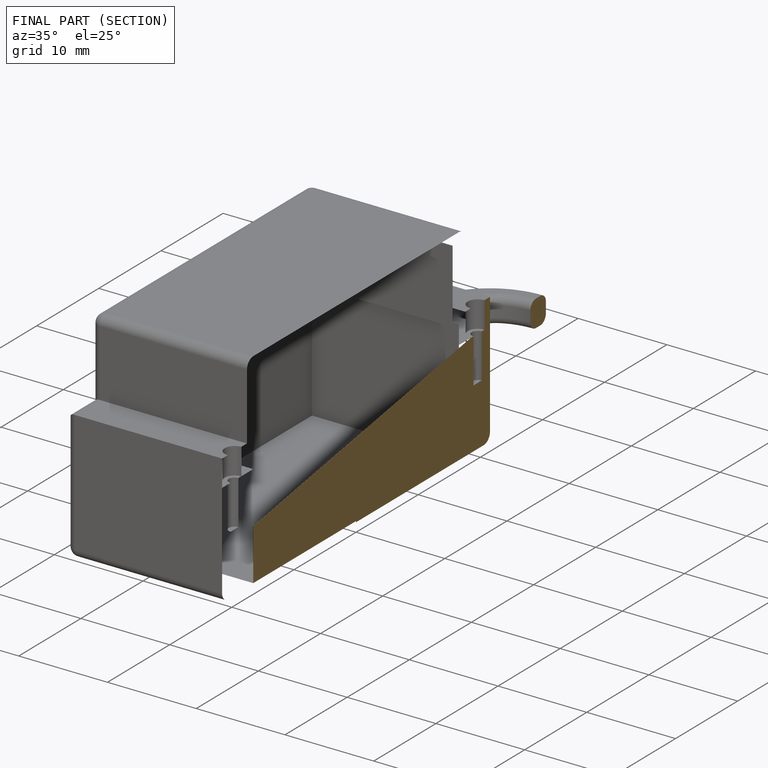
[diagram: finished part — half-section view (interior)]
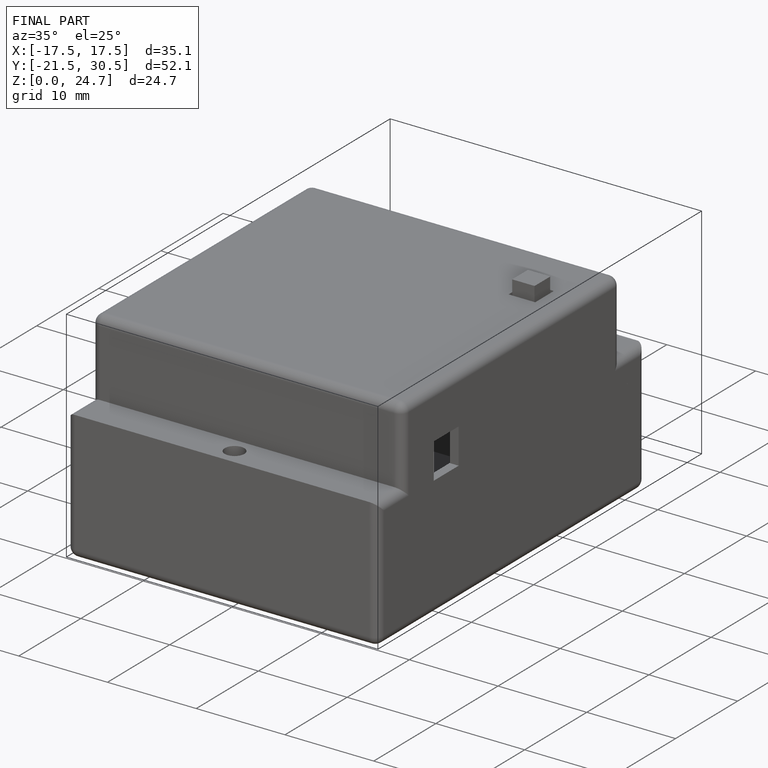
[diagram: finished part — iso view with bounding-box wireframe]
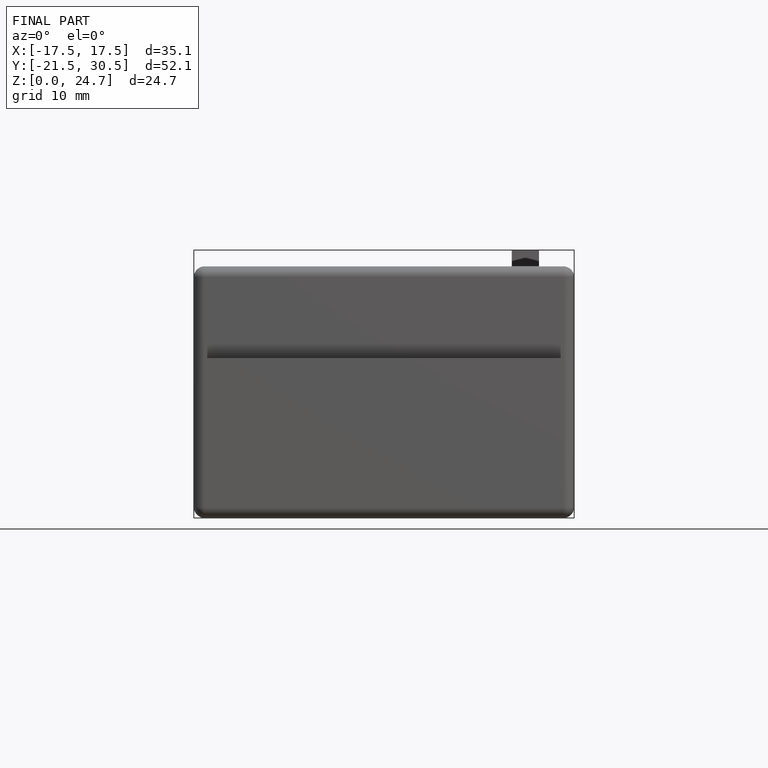
[diagram: finished part — front view with bounding-box wireframe]
